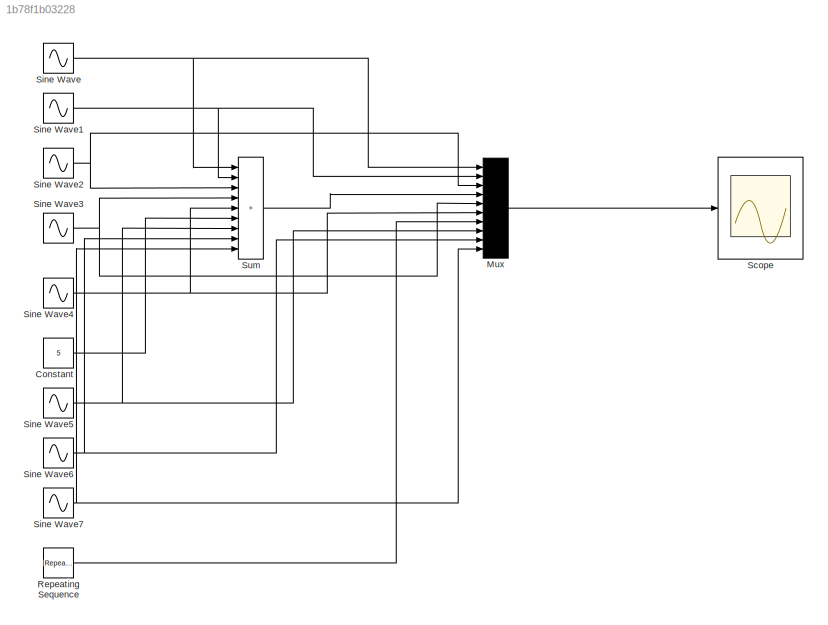
MODEL slx_1b78f1b03228
KIND model
CONFIG AbsTol = auto
CONFIG EnableMultiTasking = off
CONFIG FixedStep = auto
CONFIG MaxStep = auto
CONFIG MinStep = auto
CONFIG RelTol = 1e-3
CONFIG SampleTimeConstraint = Unconstrained
CONFIG Solver = VariableStepAuto
CONFIG SolverName = VariableStepAuto
CONFIG StartTime = 0.0
CONFIG StopTime = 10.0
BLOCK [Constant] Constant
  Value = 5
BLOCK [Mux] Mux
  DisplayOption = bar
  Inputs = 10
  Ports = [10, 1]
BLOCK [Reference] Repeating Sequence  REF=simulink/Sources/Repeating
Sequence
  Ports = [0, 1]
  SourceBlock = simulink/Sources/Repeating\nSequence
  SourceProductBaseCode = SL
  SourceType = Repeating table
BLOCK [Scope] Scope
  Floating = off
  NumInputPorts = 1
  Ports = [1]
  ScopeSpecificationString = Simulink.scopes.TimeScopeBlockCfg('CurrentConfiguration', extmgr.ConfigurationSet(extmgr.Configuration('Core','General UI',true,'FigureColor',[0 0 0]),extmgr.Configuration('Core','Source UI',true),extmgr.Configuration('Sources','WiredSimulink',true),extmgr.Configuration('Visuals','Time Domain',true,'SerializedDisplays',{struct('MinYLimReal','-4.87173','MaxYLimReal','12.01454','YLabelReal','','MinY...<+1713ch>
BLOCK [Sin] Sine Wave
  Amplitude = -10/pi
  Frequency = pi
  Ports = [0, 1]
  SampleTime = 0
BLOCK [Sin] Sine Wave1
  Amplitude = -10/(2*pi)
  Frequency = 2*pi
  Ports = [0, 1]
  SampleTime = 0
BLOCK [Sin] Sine Wave2
  Amplitude = -10/(3*pi)
  Frequency = 3*pi
  Ports = [0, 1]
  SampleTime = 0
BLOCK [Sin] Sine Wave3
  Amplitude = -10/(4*pi)
  Frequency = 4*pi
  Ports = [0, 1]
  SampleTime = 0
BLOCK [Sin] Sine Wave4
  Amplitude = -10/(5*pi)
  Frequency = 5*pi
  Ports = [0, 1]
  SampleTime = 0
BLOCK [Sin] Sine Wave5
  Amplitude = -10/(6*pi)
  Frequency = 6*pi
  Ports = [0, 1]
  SampleTime = 0
BLOCK [Sin] Sine Wave6
  Amplitude = -10/(7*pi)
  Frequency = 7*pi
  Ports = [0, 1]
  SampleTime = 0
BLOCK [Sin] Sine Wave7
  Amplitude = -10/(8*pi)
  Frequency = 8*pi
  Ports = [0, 1]
  SampleTime = 0
BLOCK [Sum] Sum
  IconShape = rectangular
  Inputs = 9
  Ports = [9, 1]
LINE Constant:1 -> Sum:6
LINE Mux:1 -> Scope:1
LINE Repeating Sequence:1 -> Mux:7
NET Sine Wave1:1 -> Mux:2, Sum:2
NET Sine Wave2:1 -> Mux:3, Sum:3
NET Sine Wave3:1 -> Mux:5, Sum:4
NET Sine Wave4:1 -> Mux:6, Sum:5
NET Sine Wave5:1 -> Mux:8, Sum:7
NET Sine Wave6:1 -> Mux:9, Sum:8
NET Sine Wave7:1 -> Mux:10, Sum:9
NET Sine Wave:1 -> Mux:1, Sum:1
LINE Sum:1 -> Mux:4
note: NET lines group one-source signal fan-out (src -> all destinations, sorted); 1:1 wires keep LINE
